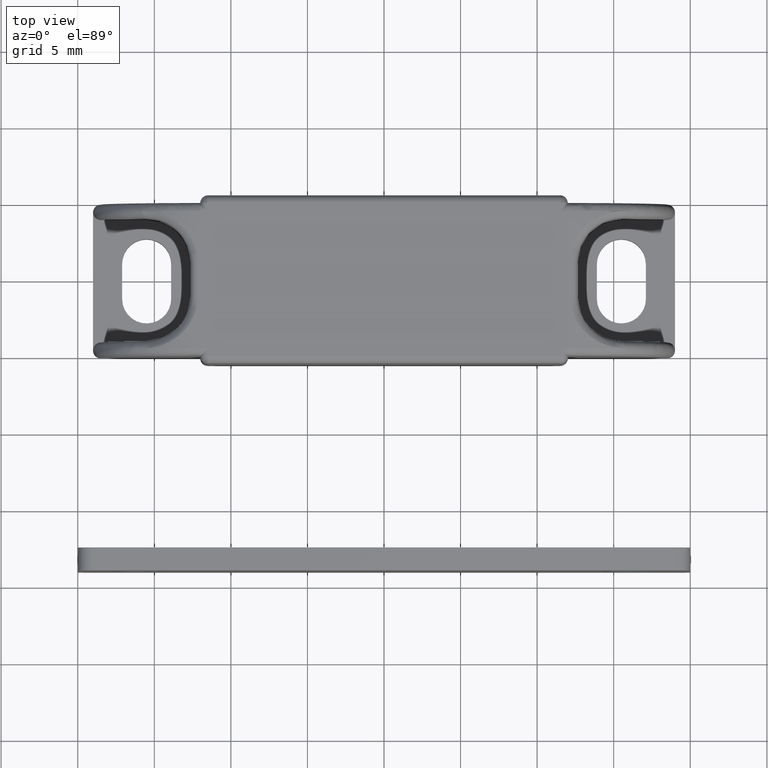
[diagram: clean part render]
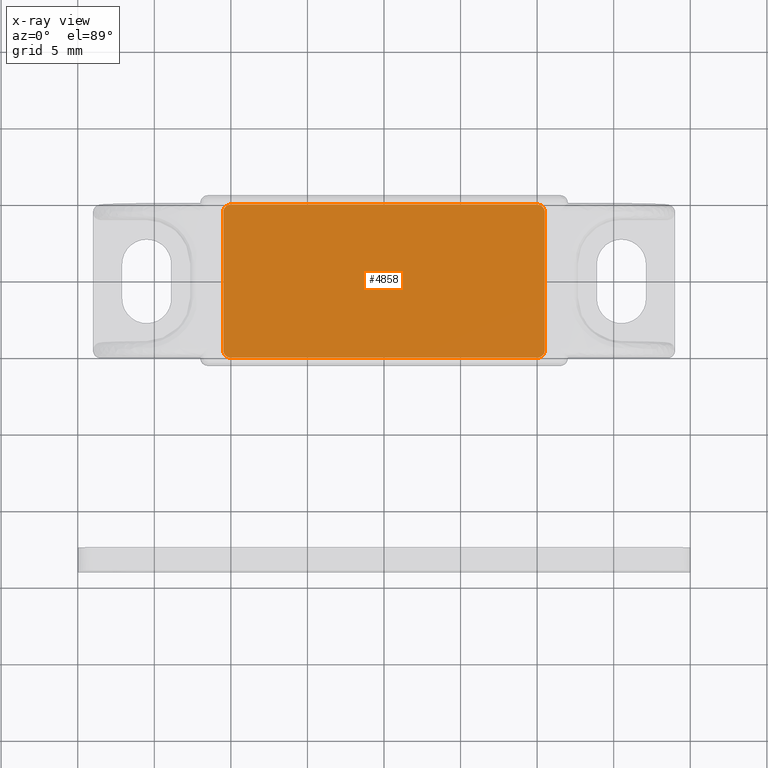
[diagram: x-ray — body ghosted, one internal face saturated and labeled with its STEP entity id]
A machine part, top view, then the same camera in x-ray: the body is ghosted and one INTERNAL B-rep face — a face not visible from any outside direction — is saturated and labeled: STEP entity #4858.
In plain terms, the highlighted face is a freeform B-spline surface patch.
Its self-contained STEP definition (entity closure, byte-faithful):
#4765=CARTESIAN_POINT('',(-11.548949959299270,-5.499499980618060,2.300000000000000));
#4766=CARTESIAN_POINT('',(11.548950522562830,-5.499499980618060,2.300000000000000));
#4767=CARTESIAN_POINT('',(-11.548949959299270,5.499500248838961,2.300000000000000));
#4768=CARTESIAN_POINT('',(11.548950522562830,5.499500248838961,2.300000000000000));
#4769=B_SPLINE_SURFACE_WITH_KNOTS('',1,1,((#4765,#4767),(#4766,#4768)),.UNSPECIFIED.,.F.,.F.,.U.,(2,2),(2,2),(0.0,23.097900481862101),(0.0,10.999000229457019),.UNSPECIFIED.);
#4770=CARTESIAN_POINT('',(-9.999999999999089,-5.0,2.299999999999970));
#4771=VERTEX_POINT('',#4770);
#4772=CARTESIAN_POINT('',(-10.499999999999099,-4.500000000000220,2.299999999999970));
#4773=VERTEX_POINT('',#4772);
#4774=CARTESIAN_POINT('',(-9.999999999999089,-4.999999999999999,2.299999999999970));
#4775=CARTESIAN_POINT('',(-10.499999999998870,-4.999999999999999,2.299999999999971));
#4776=CARTESIAN_POINT('',(-10.499999999999091,-4.500000000000220,2.299999999999970));
#4784=(BOUNDED_CURVE()B_SPLINE_CURVE(2,(#4774,#4775,#4776),.UNSPECIFIED.,.F.,.U.)CURVE()GEOMETRIC_REPRESENTATION_ITEM()QUASI_UNIFORM_CURVE()RATIONAL_B_SPLINE_CURVE((1.0,0.707106781186703,1.0))REPRESENTATION_ITEM(''));
#4785=EDGE_CURVE('',#4771,#4773,#4784,.T.);
#4786=ORIENTED_EDGE('',*,*,#4785,.F.);
#4787=CARTESIAN_POINT('',(10.000000000000901,-5.0,2.299999999999970));
#4788=VERTEX_POINT('',#4787);
#4789=CARTESIAN_POINT('',(10.000000000000901,-5.0,2.299999999999970));
#4790=CARTESIAN_POINT('',(-9.999999999999089,-5.0,2.299999999999970));
#4791=QUASI_UNIFORM_CURVE('',1,(#4789,#4790),.UNSPECIFIED.,.F.,.U.);
#4792=EDGE_CURVE('',#4788,#4771,#4791,.T.);
#4793=ORIENTED_EDGE('',*,*,#4792,.F.);
#4794=CARTESIAN_POINT('',(10.500000000000901,-4.499999999999894,2.299999999999970));
#4795=VERTEX_POINT('',#4794);
#4796=CARTESIAN_POINT('',(10.500000000000901,-4.499999999999894,2.299999999999970));
#4797=CARTESIAN_POINT('',(10.500000000000901,-4.999999999999998,2.299999999999970));
#4798=CARTESIAN_POINT('',(10.000000000000901,-4.999999999999999,2.299999999999970));
#4806=(BOUNDED_CURVE()B_SPLINE_CURVE(2,(#4796,#4797,#4798),.UNSPECIFIED.,.F.,.U.)CURVE()GEOMETRIC_REPRESENTATION_ITEM()QUASI_UNIFORM_CURVE()RATIONAL_B_SPLINE_CURVE((1.0,0.707106781186548,1.0))REPRESENTATION_ITEM(''));
#4807=EDGE_CURVE('',#4795,#4788,#4806,.T.);
#4808=ORIENTED_EDGE('',*,*,#4807,.F.);
#4809=CARTESIAN_POINT('',(10.499999999998639,4.500000000000000,2.299999999999970));
#4810=VERTEX_POINT('',#4809);
#4811=CARTESIAN_POINT('',(10.499999999998639,4.500000000000000,2.299999999999970));
#4812=CARTESIAN_POINT('',(10.500000000000901,-4.499999999999894,2.299999999999970));
#4813=QUASI_UNIFORM_CURVE('',1,(#4811,#4812),.UNSPECIFIED.,.F.,.U.);
#4814=EDGE_CURVE('',#4810,#4795,#4813,.T.);
#4815=ORIENTED_EDGE('',*,*,#4814,.F.);
#4816=CARTESIAN_POINT('',(9.999999999998749,5.0,2.299999999999970));
#4817=VERTEX_POINT('',#4816);
#4818=CARTESIAN_POINT('',(9.999999999998749,4.999999999999999,2.299999999999970));
#4819=CARTESIAN_POINT('',(10.499999999998632,4.999999999999878,2.299999999999971));
#4820=CARTESIAN_POINT('',(10.499999999998630,4.500000000000000,2.299999999999970));
#4828=(BOUNDED_CURVE()B_SPLINE_CURVE(2,(#4818,#4819,#4820),.UNSPECIFIED.,.F.,.U.)CURVE()GEOMETRIC_REPRESENTATION_ITEM()QUASI_UNIFORM_CURVE()RATIONAL_B_SPLINE_CURVE((1.0,0.707106781186632,1.0))REPRESENTATION_ITEM(''));
#4829=EDGE_CURVE('',#4817,#4810,#4828,.T.);
#4830=ORIENTED_EDGE('',*,*,#4829,.F.);
#4831=CARTESIAN_POINT('',(-10.000000000001361,5.0,2.299999999999970));
#4832=VERTEX_POINT('',#4831);
#4833=CARTESIAN_POINT('',(-10.000000000001361,5.0,2.299999999999970));
#4834=CARTESIAN_POINT('',(9.999999999998749,5.0,2.299999999999970));
#4835=QUASI_UNIFORM_CURVE('',1,(#4833,#4834),.UNSPECIFIED.,.F.,.U.);
#4836=EDGE_CURVE('',#4832,#4817,#4835,.T.);
#4837=ORIENTED_EDGE('',*,*,#4836,.F.);
#4838=CARTESIAN_POINT('',(-10.500000000001240,4.499999999999830,2.299999999999970));
#4839=VERTEX_POINT('',#4838);
#4840=CARTESIAN_POINT('',(-10.500000000001240,4.499999999999830,2.299999999999970));
#4841=CARTESIAN_POINT('',(-10.500117791929091,4.573653983706689,2.299999999999970));
#4842=CARTESIAN_POINT('',(-10.473297358885549,4.692175829937692,2.299999999999974));
#4843=CARTESIAN_POINT('',(-10.387727936557461,4.823652132605571,2.299999999999967));
#4844=CARTESIAN_POINT('',(-10.285217632887470,4.918916271739294,2.299999999999980));
#4845=CARTESIAN_POINT('',(-10.155447229398829,4.984235183436546,2.299999999999951));
#4846=CARTESIAN_POINT('',(-10.049085709860810,5.000015731799065,2.299999999999991));
#4847=CARTESIAN_POINT('',(-10.000000000001361,5.0,2.299999999999970));
#4848=B_SPLINE_CURVE_WITH_KNOTS('',3,(#4840,#4841,#4842,#4843,#4844,#4845,#4846,#4847),.UNSPECIFIED.,.F.,.U.,(4,1,1,1,1,4),(0.000000095313662,0.220900093392489,0.355892946261043,0.466341312806817,0.638153746521317,0.785417872186122),.UNSPECIFIED.);
#4849=EDGE_CURVE('',#4839,#4832,#4848,.T.);
#4850=ORIENTED_EDGE('',*,*,#4849,.F.);
#4851=CARTESIAN_POINT('',(-10.499999999999099,-4.500000000000220,2.299999999999970));
#4852=CARTESIAN_POINT('',(-10.500000000001240,4.499999999999830,2.299999999999970));
#4853=QUASI_UNIFORM_CURVE('',1,(#4851,#4852),.UNSPECIFIED.,.F.,.U.);
#4854=EDGE_CURVE('',#4773,#4839,#4853,.T.);
#4855=ORIENTED_EDGE('',*,*,#4854,.F.);
#4856=EDGE_LOOP('',(#4786,#4793,#4808,#4815,#4830,#4837,#4850,#4855));
#4857=FACE_OUTER_BOUND('',#4856,.T.);
#4858=ADVANCED_FACE('',(#4857),#4769,.T.);